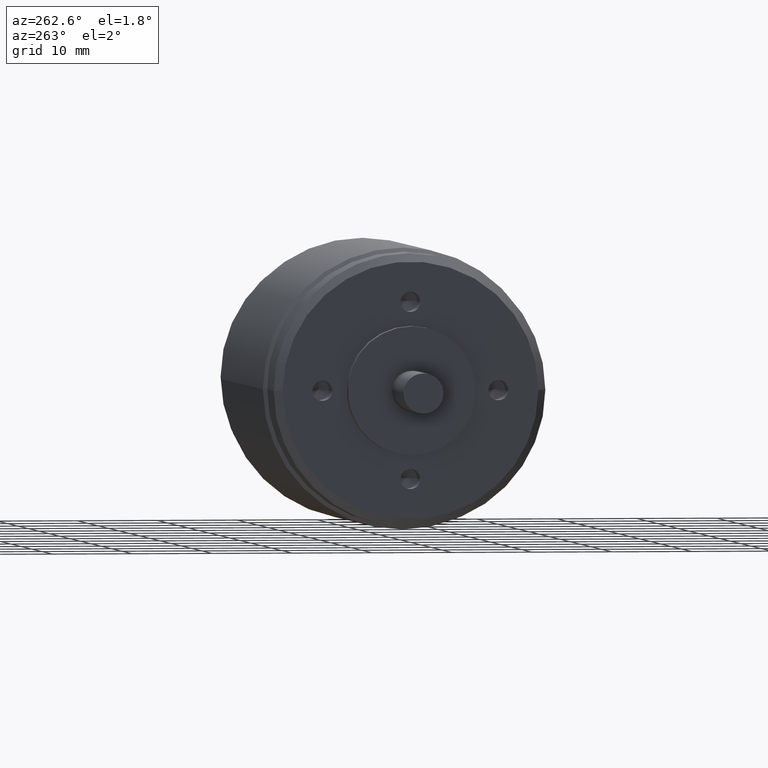
[diagram: clean part render]
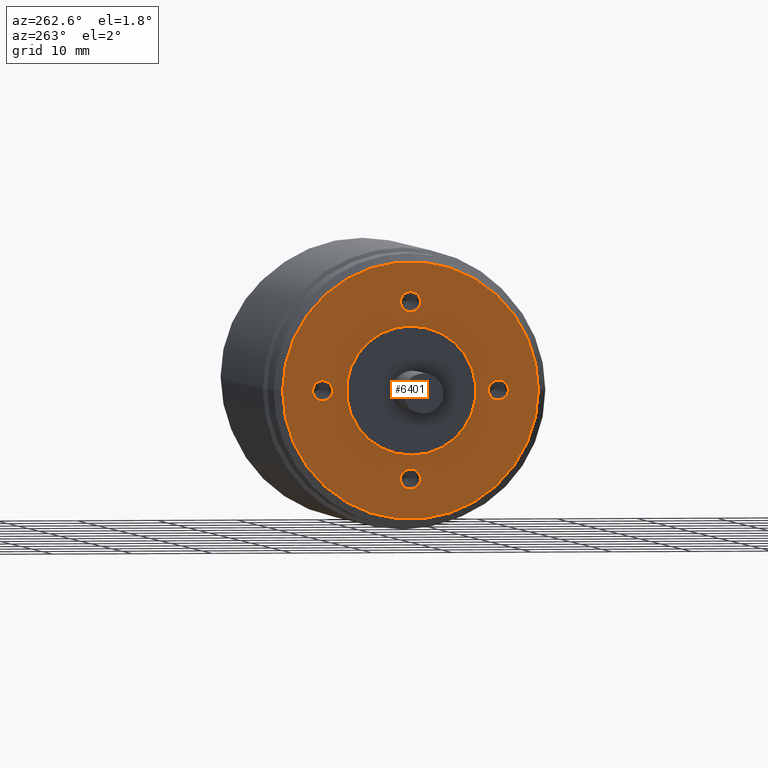
[diagram: same view with one face highlighted and labeled with its STEP entity id]
A machine part, auxiliary view. The second image highlights one B-rep face of the part: STEP entity #6401.
In plain terms, the highlighted planar face has unit normal (-1, 0, 0).
Its self-contained STEP definition (entity closure, byte-faithful):
#2255=CARTESIAN_POINT('',(-4.996E1,0.E0,0.E0));
#2256=DIRECTION('',(1.E0,0.E0,0.E0));
#2257=DIRECTION('',(0.E0,1.E0,0.E0));
#2258=AXIS2_PLACEMENT_3D('',#2255,#2256,#2257);
#2260=CARTESIAN_POINT('',(-4.996E1,0.E0,0.E0));
#2261=DIRECTION('',(-1.E0,0.E0,0.E0));
#2262=DIRECTION('',(0.E0,1.E0,0.E0));
#2263=AXIS2_PLACEMENT_3D('',#2260,#2261,#2262);
#2265=CARTESIAN_POINT('',(-4.996E1,0.E0,0.E0));
#2266=DIRECTION('',(1.E0,0.E0,0.E0));
#2267=DIRECTION('',(0.E0,0.E0,1.E0));
#2268=AXIS2_PLACEMENT_3D('',#2265,#2266,#2267);
#2270=CARTESIAN_POINT('',(-4.996E1,0.E0,0.E0));
#2271=DIRECTION('',(1.E0,0.E0,0.E0));
#2272=DIRECTION('',(0.E0,0.E0,-1.E0));
#2273=AXIS2_PLACEMENT_3D('',#2270,#2271,#2272);
#2275=CARTESIAN_POINT('',(-4.996E1,0.E0,1.1E1));
#2276=DIRECTION('',(-1.E0,0.E0,0.E0));
#2277=DIRECTION('',(0.E0,1.E0,0.E0));
#2278=AXIS2_PLACEMENT_3D('',#2275,#2276,#2277);
#2280=CARTESIAN_POINT('',(-4.996E1,0.E0,1.1E1));
#2281=DIRECTION('',(-1.E0,0.E0,0.E0));
#2282=DIRECTION('',(0.E0,-1.E0,0.E0));
#2283=AXIS2_PLACEMENT_3D('',#2280,#2281,#2282);
#2285=CARTESIAN_POINT('',(-4.996E1,-1.1E1,0.E0));
#2286=DIRECTION('',(-1.E0,0.E0,0.E0));
#2287=DIRECTION('',(0.E0,0.E0,1.E0));
#2288=AXIS2_PLACEMENT_3D('',#2285,#2286,#2287);
#2290=CARTESIAN_POINT('',(-4.996E1,-1.1E1,0.E0));
#2291=DIRECTION('',(-1.E0,0.E0,0.E0));
#2292=DIRECTION('',(0.E0,0.E0,-1.E0));
#2293=AXIS2_PLACEMENT_3D('',#2290,#2291,#2292);
#2295=CARTESIAN_POINT('',(-4.996E1,0.E0,-1.1E1));
#2296=DIRECTION('',(-1.E0,0.E0,0.E0));
#2297=DIRECTION('',(0.E0,-1.E0,0.E0));
#2298=AXIS2_PLACEMENT_3D('',#2295,#2296,#2297);
#2300=CARTESIAN_POINT('',(-4.996E1,0.E0,-1.1E1));
#2301=DIRECTION('',(-1.E0,0.E0,0.E0));
#2302=DIRECTION('',(0.E0,1.E0,0.E0));
#2303=AXIS2_PLACEMENT_3D('',#2300,#2301,#2302);
#2305=CARTESIAN_POINT('',(-4.996E1,1.1E1,0.E0));
#2306=DIRECTION('',(-1.E0,0.E0,0.E0));
#2307=DIRECTION('',(0.E0,0.E0,-1.E0));
#2308=AXIS2_PLACEMENT_3D('',#2305,#2306,#2307);
#2310=CARTESIAN_POINT('',(-4.996E1,1.1E1,0.E0));
#2311=DIRECTION('',(-1.E0,0.E0,0.E0));
#2312=DIRECTION('',(0.E0,0.E0,1.E0));
#2313=AXIS2_PLACEMENT_3D('',#2310,#2311,#2312);
#3270=CARTESIAN_POINT('',(-4.996E1,1.6E1,0.E0));
#3271=VERTEX_POINT('',#3270);
#3288=CARTESIAN_POINT('',(-4.996E1,-1.6E1,0.E0));
#3289=VERTEX_POINT('',#3288);
#3524=CARTESIAN_POINT('',(-4.996E1,0.E0,8.E0));
#3525=CARTESIAN_POINT('',(-4.996E1,0.E0,-8.E0));
#3526=VERTEX_POINT('',#3524);
#3527=VERTEX_POINT('',#3525);
#3534=CARTESIAN_POINT('',(-4.996E1,1.25E0,1.1E1));
#3535=CARTESIAN_POINT('',(-4.996E1,-1.25E0,1.1E1));
#3536=VERTEX_POINT('',#3534);
#3537=VERTEX_POINT('',#3535);
#3544=CARTESIAN_POINT('',(-4.996E1,-1.1E1,1.25E0));
#3545=CARTESIAN_POINT('',(-4.996E1,-1.1E1,-1.25E0));
#3546=VERTEX_POINT('',#3544);
#3547=VERTEX_POINT('',#3545);
#3554=CARTESIAN_POINT('',(-4.996E1,-1.25E0,-1.1E1));
#3555=CARTESIAN_POINT('',(-4.996E1,1.25E0,-1.1E1));
#3556=VERTEX_POINT('',#3554);
#3557=VERTEX_POINT('',#3555);
#3564=CARTESIAN_POINT('',(-4.996E1,1.1E1,-1.25E0));
#3565=CARTESIAN_POINT('',(-4.996E1,1.1E1,1.25E0));
#3566=VERTEX_POINT('',#3564);
#3567=VERTEX_POINT('',#3565);
#6362=CARTESIAN_POINT('',(-4.996E1,0.E0,0.E0));
#6363=DIRECTION('',(-1.E0,0.E0,0.E0));
#6364=DIRECTION('',(0.E0,1.E0,0.E0));
#6365=AXIS2_PLACEMENT_3D('',#6362,#6363,#6364);
#6366=PLANE('',#6365);
#6367=ORIENTED_EDGE('',*,*,#6357,.T.);
#6368=ORIENTED_EDGE('',*,*,#6341,.F.);
#6369=EDGE_LOOP('',(#6367,#6368));
#6370=FACE_OUTER_BOUND('',#6369,.F.);
#6372=ORIENTED_EDGE('',*,*,#6371,.F.);
#6374=ORIENTED_EDGE('',*,*,#6373,.F.);
#6375=EDGE_LOOP('',(#6372,#6374));
#6376=FACE_BOUND('',#6375,.F.);
#6378=ORIENTED_EDGE('',*,*,#6377,.T.);
#6380=ORIENTED_EDGE('',*,*,#6379,.T.);
#6381=EDGE_LOOP('',(#6378,#6380));
#6382=FACE_BOUND('',#6381,.F.);
#6384=ORIENTED_EDGE('',*,*,#6383,.T.);
#6386=ORIENTED_EDGE('',*,*,#6385,.T.);
#6387=EDGE_LOOP('',(#6384,#6386));
#6388=FACE_BOUND('',#6387,.F.);
#6390=ORIENTED_EDGE('',*,*,#6389,.T.);
#6392=ORIENTED_EDGE('',*,*,#6391,.T.);
#6393=EDGE_LOOP('',(#6390,#6392));
#6394=FACE_BOUND('',#6393,.F.);
#6396=ORIENTED_EDGE('',*,*,#6395,.T.);
#6398=ORIENTED_EDGE('',*,*,#6397,.T.);
#6399=EDGE_LOOP('',(#6396,#6398));
#6400=FACE_BOUND('',#6399,.F.);
#6401=ADVANCED_FACE('',(#6370,#6376,#6382,#6388,#6394,#6400),#6366,.T.);
#2259=CIRCLE('',#2258,1.6E1);
#2264=CIRCLE('',#2263,1.6E1);
#2269=CIRCLE('',#2268,8.E0);
#2274=CIRCLE('',#2273,8.E0);
#2279=CIRCLE('',#2278,1.25E0);
#2284=CIRCLE('',#2283,1.25E0);
#2289=CIRCLE('',#2288,1.25E0);
#2294=CIRCLE('',#2293,1.25E0);
#2299=CIRCLE('',#2298,1.25E0);
#2304=CIRCLE('',#2303,1.25E0);
#2309=CIRCLE('',#2308,1.25E0);
#2314=CIRCLE('',#2313,1.25E0);
#6341=EDGE_CURVE('',#3271,#3289,#2264,.T.);
#6357=EDGE_CURVE('',#3271,#3289,#2259,.T.);
#6371=EDGE_CURVE('',#3526,#3527,#2269,.T.);
#6373=EDGE_CURVE('',#3527,#3526,#2274,.T.);
#6377=EDGE_CURVE('',#3536,#3537,#2279,.T.);
#6379=EDGE_CURVE('',#3537,#3536,#2284,.T.);
#6383=EDGE_CURVE('',#3546,#3547,#2289,.T.);
#6385=EDGE_CURVE('',#3547,#3546,#2294,.T.);
#6389=EDGE_CURVE('',#3556,#3557,#2299,.T.);
#6391=EDGE_CURVE('',#3557,#3556,#2304,.T.);
#6395=EDGE_CURVE('',#3566,#3567,#2309,.T.);
#6397=EDGE_CURVE('',#3567,#3566,#2314,.T.);